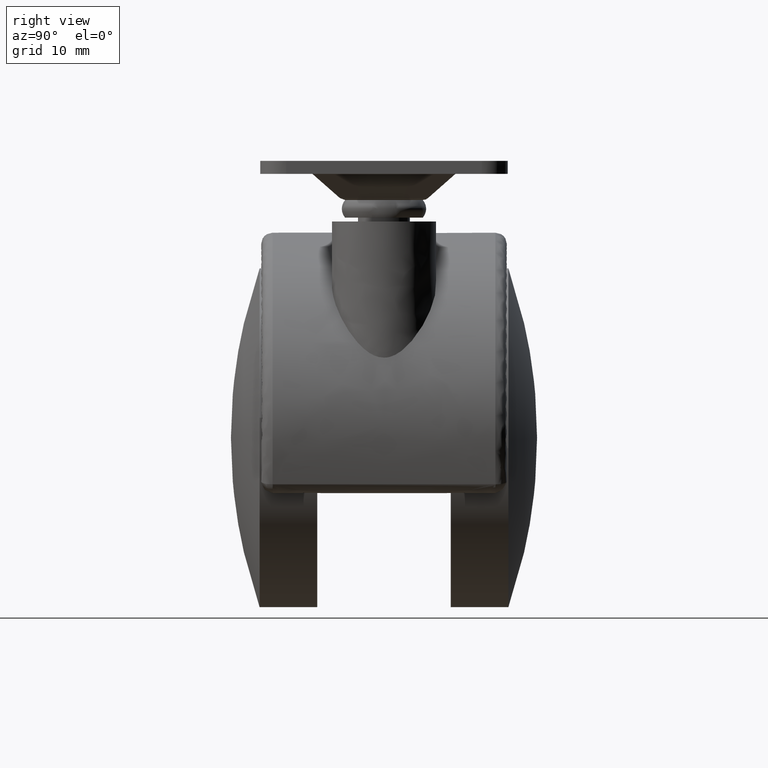
[diagram: clean part render]
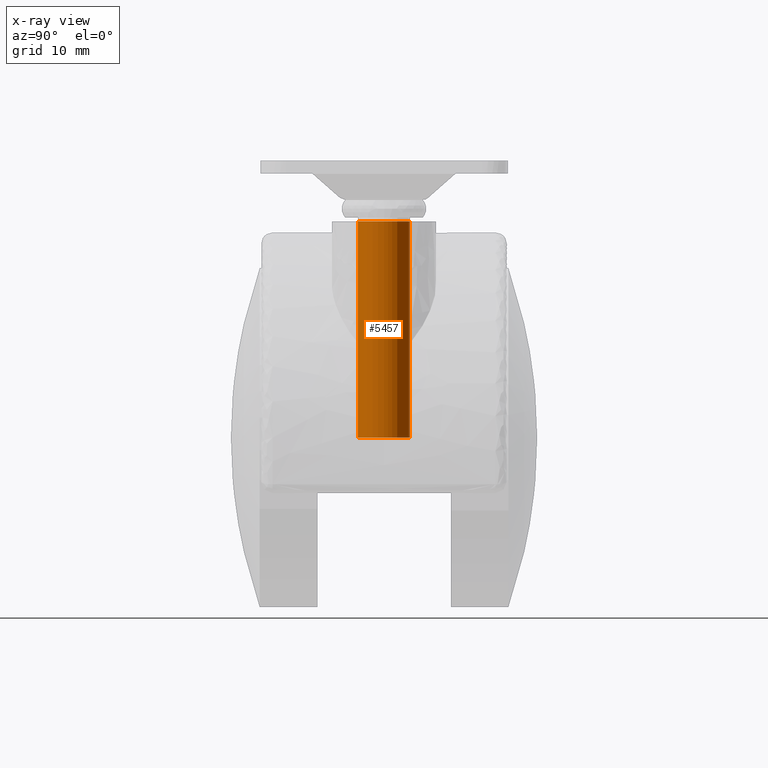
[diagram: x-ray — body ghosted, one internal face saturated and labeled with its STEP entity id]
A machine part, right view, then the same camera in x-ray: the body is ghosted and one INTERNAL B-rep face — a face not visible from any outside direction — is saturated and labeled: STEP entity #5457.
In plain terms, the highlighted face is a freeform B-spline surface patch.
Its self-contained STEP definition (entity closure, byte-faithful):
#5355=CARTESIAN_POINT('',(20.527863061372965,3.972038105454666,34.030000000000008));
#5356=CARTESIAN_POINT('',(20.641541085448093,3.985550461794422,34.030000000000015));
#5357=CARTESIAN_POINT('',(20.755805841860571,3.992539193687467,34.030000000000008));
#5358=CARTESIAN_POINT('',(24.748345035548045,4.236733351826894,34.030000000000008));
#5359=CARTESIAN_POINT('',(24.992539193687470,0.244194158139428,34.030000000000008));
#5360=CARTESIAN_POINT('',(25.236733351826899,-3.748345035548039,34.030000000000008));
#5361=CARTESIAN_POINT('',(21.244194158139429,-3.992539193687467,34.030000000000008));
#5362=CARTESIAN_POINT('',(20.527863061372965,3.972038105454666,-0.850750000000005));
#5363=CARTESIAN_POINT('',(20.641541085448093,3.985550461794422,-0.850750000000005));
#5364=CARTESIAN_POINT('',(20.755805841860571,3.992539193687467,-0.850750000000005));
#5365=CARTESIAN_POINT('',(24.748345035548045,4.236733351826894,-0.850750000000005));
#5366=CARTESIAN_POINT('',(24.992539193687470,0.244194158139428,-0.850750000000005));
#5367=CARTESIAN_POINT('',(25.236733351826899,-3.748345035548039,-0.850750000000005));
#5368=CARTESIAN_POINT('',(21.244194158139429,-3.992539193687467,-0.850750000000005));
#5376=(BOUNDED_SURFACE()B_SPLINE_SURFACE(2,1,((#5355,#5362),(#5356,#5363),(#5357,#5364),(#5358,#5365),(#5359,#5366),(#5360,#5367),(#5361,#5368)),.UNSPECIFIED.,.F.,.F.,.U.)B_SPLINE_SURFACE_WITH_KNOTS((3,2,2,3),(2,2),(0.0,0.265096679918781,6.892513677888302,13.519930675857820),(0.0,34.880750000000013),.UNSPECIFIED.)GEOMETRIC_REPRESENTATION_ITEM()RATIONAL_B_SPLINE_SURFACE(((0.977505800795127,0.977505800795127),(0.988284271247462,0.988284271247462),(1.0,1.0),(0.707106781186548,0.707106781186548),(1.0,1.0),(0.707106781186548,0.707106781186548),(1.0,1.0)))REPRESENTATION_ITEM('')SURFACE());
#5377=CARTESIAN_POINT('',(20.527863061356250,3.972038105452679,-5.678856E-017));
#5378=VERTEX_POINT('',#5377);
#5379=CARTESIAN_POINT('',(25.0,0.0,0.0));
#5380=VERTEX_POINT('',#5379);
#5381=CARTESIAN_POINT('',(20.527863061356253,3.972038105452679,-5.678856E-017));
#5382=CARTESIAN_POINT('',(20.763103521375463,4.000000000000000,0.0));
#5383=CARTESIAN_POINT('',(21.0,4.0,0.0));
#5384=CARTESIAN_POINT('',(25.0,4.000000000000000,0.0));
#5385=CARTESIAN_POINT('',(25.0,0.0,0.0));
#5393=(BOUNDED_CURVE()B_SPLINE_CURVE(2,(#5381,#5382,#5383,#5384,#5385),.UNSPECIFIED.,.F.,.U.)B_SPLINE_CURVE_WITH_KNOTS((3,2,3),(0.229562473514222,0.250000000000000,0.500000000000000),.UNSPECIFIED.)CURVE()GEOMETRIC_REPRESENTATION_ITEM()RATIONAL_B_SPLINE_CURVE((0.956026754185098,0.976055948331981,1.0,0.707106781186548,1.0))REPRESENTATION_ITEM(''));
#5394=EDGE_CURVE('',#5378,#5380,#5393,.T.);
#5395=ORIENTED_EDGE('',*,*,#5394,.T.);
#5396=CARTESIAN_POINT('',(21.244194158337429,-3.992539193675357,0.0));
#5397=VERTEX_POINT('',#5396);
#5398=CARTESIAN_POINT('',(25.0,0.0,0.0));
#5399=CARTESIAN_POINT('',(25.000000000000004,-3.762824267248864,0.0));
#5400=CARTESIAN_POINT('',(21.244194158337425,-3.992539193675357,0.0));
#5408=(BOUNDED_CURVE()B_SPLINE_CURVE(2,(#5398,#5399,#5400),.UNSPECIFIED.,.F.,.U.)B_SPLINE_CURVE_WITH_KNOTS((3,3),(0.500000000000000,0.739332962224854),.UNSPECIFIED.)CURVE()GEOMETRIC_REPRESENTATION_ITEM()RATIONAL_B_SPLINE_CURVE((1.0,0.719603993303216,0.976072041636523))REPRESENTATION_ITEM(''));
#5409=EDGE_CURVE('',#5380,#5397,#5408,.T.);
#5410=ORIENTED_EDGE('',*,*,#5409,.T.);
#5411=CARTESIAN_POINT('',(21.244194158337429,-3.992539193675357,33.200000000000003));
#5412=VERTEX_POINT('',#5411);
#5413=CARTESIAN_POINT('',(21.244194158337429,-3.992539193675357,33.200000000000003));
#5414=CARTESIAN_POINT('',(21.244194158337429,-3.992539193675357,0.0));
#5415=QUASI_UNIFORM_CURVE('',1,(#5413,#5414),.UNSPECIFIED.,.F.,.U.);
#5416=EDGE_CURVE('',#5412,#5397,#5415,.T.);
#5417=ORIENTED_EDGE('',*,*,#5416,.F.);
#5418=CARTESIAN_POINT('',(25.0,0.0,33.200000000000003));
#5419=VERTEX_POINT('',#5418);
#5420=CARTESIAN_POINT('',(25.0,0.0,33.200000000000003));
#5421=CARTESIAN_POINT('',(25.000000000000004,-3.762824267248864,33.200000000000003));
#5422=CARTESIAN_POINT('',(21.244194158337425,-3.992539193675357,33.200000000000003));
#5430=(BOUNDED_CURVE()B_SPLINE_CURVE(2,(#5420,#5421,#5422),.UNSPECIFIED.,.F.,.U.)B_SPLINE_CURVE_WITH_KNOTS((3,3),(0.500000000000000,0.739332962224854),.UNSPECIFIED.)CURVE()GEOMETRIC_REPRESENTATION_ITEM()RATIONAL_B_SPLINE_CURVE((1.0,0.719603993303216,0.976072041636523))REPRESENTATION_ITEM(''));
#5431=EDGE_CURVE('',#5419,#5412,#5430,.T.);
#5432=ORIENTED_EDGE('',*,*,#5431,.F.);
#5433=CARTESIAN_POINT('',(20.527863061356250,3.972038105452678,33.200000000000003));
#5434=VERTEX_POINT('',#5433);
#5435=CARTESIAN_POINT('',(20.527863061356250,3.972038105452678,33.200000000000003));
#5436=CARTESIAN_POINT('',(20.763103521375466,4.0,33.199999999999996));
#5437=CARTESIAN_POINT('',(21.0,4.0,33.200000000000003));
#5438=CARTESIAN_POINT('',(25.0,4.000000000000000,33.200000000000003));
#5439=CARTESIAN_POINT('',(25.0,0.0,33.200000000000003));
#5447=(BOUNDED_CURVE()B_SPLINE_CURVE(2,(#5435,#5436,#5437,#5438,#5439),.UNSPECIFIED.,.F.,.U.)B_SPLINE_CURVE_WITH_KNOTS((3,2,3),(0.229562473514222,0.250000000000000,0.500000000000000),.UNSPECIFIED.)CURVE()GEOMETRIC_REPRESENTATION_ITEM()RATIONAL_B_SPLINE_CURVE((0.956026754185097,0.976055948331981,1.0,0.707106781186548,1.0))REPRESENTATION_ITEM(''));
#5448=EDGE_CURVE('',#5434,#5419,#5447,.T.);
#5449=ORIENTED_EDGE('',*,*,#5448,.F.);
#5450=CARTESIAN_POINT('',(20.527863061356250,3.972038105452678,33.200000000000003));
#5451=CARTESIAN_POINT('',(20.527863061356250,3.972038105452679,-5.678856E-017));
#5452=QUASI_UNIFORM_CURVE('',1,(#5450,#5451),.UNSPECIFIED.,.F.,.U.);
#5453=EDGE_CURVE('',#5434,#5378,#5452,.T.);
#5454=ORIENTED_EDGE('',*,*,#5453,.T.);
#5455=EDGE_LOOP('',(#5395,#5410,#5417,#5432,#5449,#5454));
#5456=FACE_OUTER_BOUND('',#5455,.T.);
#5457=ADVANCED_FACE('',(#5456),#5376,.F.);